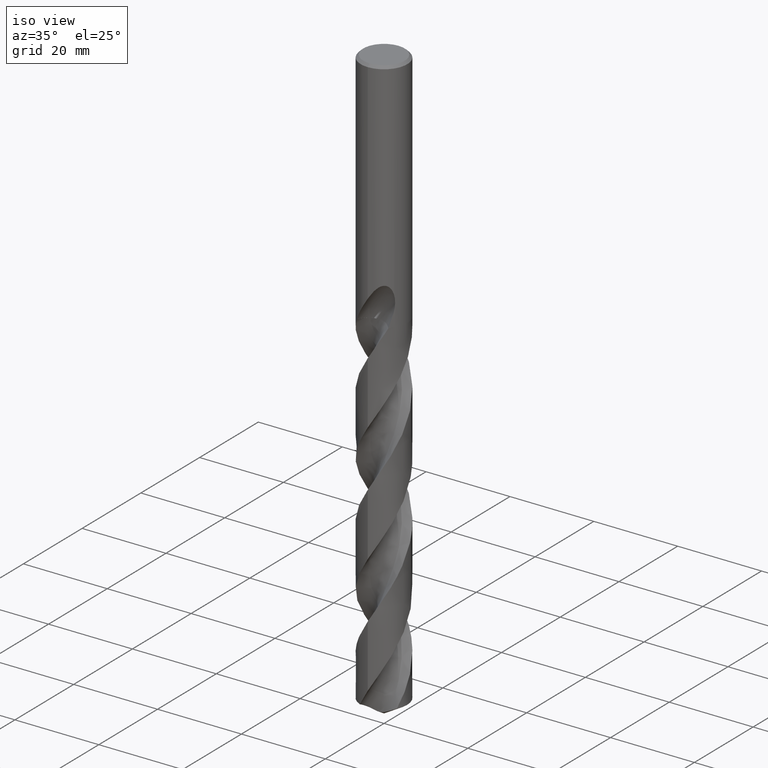
[diagram: clean part render]
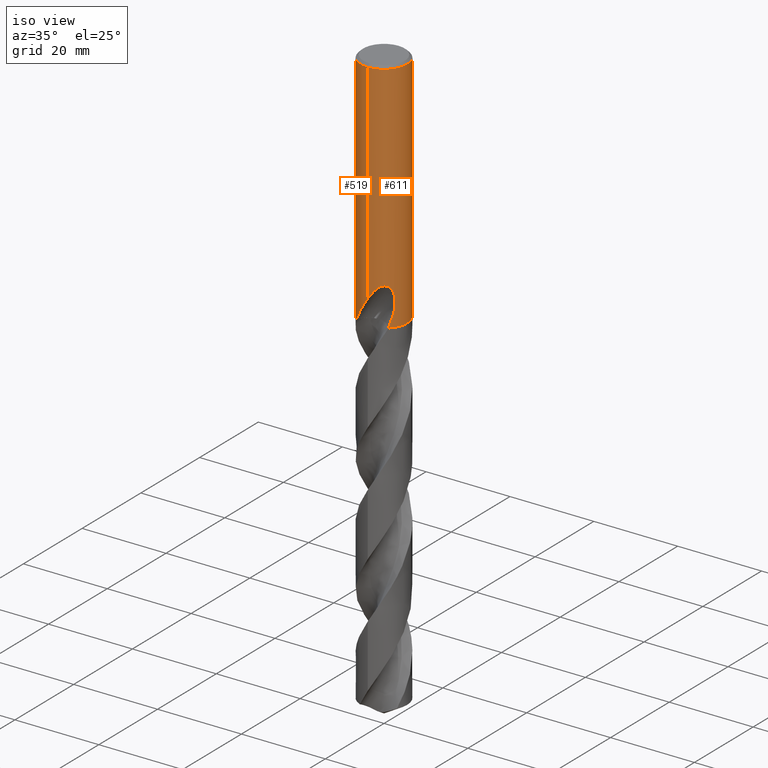
[diagram: same view with one multi-face feature highlighted, each face labeled with its STEP entity id]
A machine part, iso view. The highlighted faces form ONE feature: a constant-radius fillet chain: 2 tangent blend faces with common blend radius 5.55 mm. The faces share edges in the B-rep.
Their STEP definitions:
[1] entity #611 (Cylinder):
#269=VERTEX_POINT('',#753);
#311=VERTEX_POINT('',#798);
#319=VERTEX_POINT('',#806);
#341=EDGE_CURVE('',#269,#347,#833,.T.);
#347=VERTEX_POINT('',#840);
#349=EDGE_CURVE('',#667,#311,#842,.T.);
#351=EDGE_CURVE('',#431,#473,#844,.T.);
#357=EDGE_CURVE('',#409,#637,#851,.T.);
#387=EDGE_CURVE('',#319,#529,#883,.T.);
#401=VERTEX_POINT('',#898);
#409=VERTEX_POINT('',#907);
#431=VERTEX_POINT('',#931);
#455=VERTEX_POINT('',#960);
#457=EDGE_CURVE('',#703,#473,#962,.T.);
#459=EDGE_CURVE('',#401,#537,#964,.T.);
#473=VERTEX_POINT('',#978);
#509=EDGE_CURVE('',#679,#637,#1018,.T.);
#521=EDGE_CURVE('',#529,#401,#1032,.T.);
#529=VERTEX_POINT('',#1040);
#537=VERTEX_POINT('',#1048);
#569=EDGE_CURVE('',#409,#347,#1080,.T.);
#593=EDGE_CURVE('',#311,#319,#1107,.T.);
#609=EDGE_CURVE('',#431,#455,#1124,.T.);
#611=ADVANCED_FACE('',(#1126),#1127,.T.);
#637=VERTEX_POINT('',#1153);
#645=EDGE_CURVE('',#537,#269,#1161,.T.);
#667=VERTEX_POINT('',#1186);
#679=VERTEX_POINT('',#1198);
#687=EDGE_CURVE('',#667,#455,#1207,.T.);
#703=VERTEX_POINT('',#1226);
#721=EDGE_CURVE('',#679,#703,#1246,.T.);
#753=CARTESIAN_POINT('',(0.799431726384364,5.49212244172052,-38.000000276873));
#798=CARTESIAN_POINT('',(0.29010312703583,5.54241284782035,-40.9998328990228));
#806=CARTESIAN_POINT('',(0.873560781758957,5.48082033646175,-39.3198931596091));
#833=B_SPLINE_CURVE_WITH_KNOTS('',3,(#2723,#2724,#2725,#2726,#2727,#2728,#2729,#2730,#2731,#2732,#2733,#2734,#2735,#2736,#2737,#2738,#2739,#2740,#2741,#2742,#2743,#2744,#2745,#2746,#2747,#2748,#2749),.UNSPECIFIED.,.F.,.F.,(4,2,3,2,2,2,2,2,2,2,2,2,4),(-0.542311693646376,-0.271155846823188,0.0,0.271155846823191,0.542311693646383,0.813930389354192,1.085549085062,1.35639351208943,1.62723793911685,1.89831087312512,2.16938380713339,2.44045674114166,2.71152967514993),.UNSPECIFIED.);
#840=CARTESIAN_POINT('',(7.96202783359194E-015,5.55,-39.0232688117743));
#842=B_SPLINE_CURVE_WITH_KNOTS('',3,(#2759,#2760,#2761,#2762,#2763,#2764,#2765,#2766,#2767,#2768,#2769,#2770,#2771,#2772,#2773,#2774),.UNSPECIFIED.,.F.,.F.,(4,2,2,2,2,2,2,4),(5.86589480338266,6.17468154973374,6.4835478273648,6.79241410499587,7.10128038262694,7.41014666025801,7.71864286439063,8.02713906852326),.UNSPECIFIED.);
#844=CIRCLE('',#2777,5.55);
#851=CIRCLE('',#2786,5.55);
#883=LINE('',#2986,#2987);
#898=CARTESIAN_POINT('',(1.33721006514658,5.38649879250619,-40.2901657003257));
#907=CARTESIAN_POINT('',(0.0,5.55,-0.600000000000001));
#931=CARTESIAN_POINT('',(3.53416691770805,4.27927145642549,-56.3916));
#960=CARTESIAN_POINT('',(-1.71141555381548E-012,5.55,-50.497078777137));
#962=B_SPLINE_CURVE_WITH_KNOTS('',3,(#4067,#4068,#4069,#4070),.UNSPECIFIED.,.F.,.F.,(4,4),(0.0,3.18443413913057),.UNSPECIFIED.);
#964=LINE('',#4073,#4074);
#978=CARTESIAN_POINT('',(3.85899923732063,-3.98881246567932,-56.3916));
#1018=LINE('',#4369,#4370);
#1032=B_SPLINE_CURVE_WITH_KNOTS('',3,(#4412,#4413,#4414,#4415,#4416,#4417,#4418,#4419,#4420,#4421),.UNSPECIFIED.,.F.,.F.,(4,2,2,2,4),(8.0271383520842,8.33563452880933,8.64413070553445,8.95286509218947,9.2615994788445),.UNSPECIFIED.);
#1040=CARTESIAN_POINT('',(0.873560781758956,5.48082033646175,-40.7587351791531));
#1048=CARTESIAN_POINT('',(1.33721006514658,5.38649879250619,-38.5150484364821));
#1080=LINE('',#4901,#4902);
#1107=ELLIPSE('',#5395,16.9163698822022,5.55);
#1124=B_SPLINE_CURVE_WITH_KNOTS('',3,(#6185,#6186,#6187,#6188,#6189,#6190,#6191,#6192,#6193,#6194,#6195,#6196,#6197,#6198,#6199,#6200,#6201,#6202,#6203,#6204,#6205,#6206,#6207,#6208,#6209,#6210,#6211,#6212,#6213,#6214),.UNSPECIFIED.,.F.,.F.,(4,2,2,2,2,2,2,2,2,2,2,2,2,2,4),(0.0,2.71554571980446,4.19995213490147,5.54499475809851,7.10792988907432,8.98510180946202,10.6098295872118,11.3469431440182,11.885728142585,12.3956058036005,13.042460287542,13.9888722639679,15.334281634665,16.2143961172333,17.1393257383569),.UNSPECIFIED.);
#1126=FACE_OUTER_BOUND('',#6216,.T.);
#1127=CYLINDRICAL_SURFACE('',#6217,5.55);
#1153=CARTESIAN_POINT('',(6.79656526371419E-016,-5.55,-0.600000000000001));
#1161=B_SPLINE_CURVE_WITH_KNOTS('',3,(#6588,#6589,#6590,#6591,#6592,#6593,#6594,#6595,#6596,#6597),.UNSPECIFIED.,.F.,.F.,(4,2,2,2,4),(0.617468794715614,0.92620319207342,1.23493758943123,1.54343377660373,1.85192996377624),.UNSPECIFIED.);
#1186=CARTESIAN_POINT('',(-6.37761657961682E-016,5.55,-41.0310253601033));
#1198=CARTESIAN_POINT('',(1.71141555381548E-012,-5.55,-50.497078777137));
#1207=LINE('',#7989,#7990);
#1226=CARTESIAN_POINT('',(4.51571400634924,-3.22658131973476,-53.3575297343524));
#1246=B_SPLINE_CURVE_WITH_KNOTS('',3,(#8200,#8201,#8202,#8203,#8204,#8205,#8206,#8207,#8208,#8209,#8210,#8211,#8212,#8213,#8214,#8215,#8216,#8217,#8218,#8219,#8220,#8221,#8222,#8223,#8224,#8225,#8226,#8227,#8228,#8229),.UNSPECIFIED.,.F.,.F.,(4,2,2,2,2,2,2,2,2,2,2,2,2,2,4),(0.0,2.71554571980441,4.19995213490155,5.54499475809945,7.1079298890762,8.98510180946465,10.6098295872151,11.346943144022,11.8857281425889,12.3956058036045,13.042460287546,13.98887226397,15.3342816346614,16.2143961172258,17.1393257383454),.UNSPECIFIED.);
#2723=CARTESIAN_POINT('',(0.665070641317688,5.51000735408377,-37.8135441658217));
#2724=CARTESIAN_POINT('',(0.728723401149102,5.50232431863894,-37.8772528495628));
#2725=CARTESIAN_POINT('',(0.783970654729551,5.49447584902719,-37.9579510961051));
#2726=CARTESIAN_POINT('',(0.857313414247491,5.48351060591628,-38.1349472879311));
#2727=CARTESIAN_POINT('',(0.875400981188567,5.480526719407,-38.2312567303124));
#2728=CARTESIAN_POINT('',(0.875400981188567,5.480526719407,-38.3216420125868));
#2729=CARTESIAN_POINT('',(0.875400981188567,5.480526719407,-38.4120272948612));
#2730=CARTESIAN_POINT('',(0.857313414247487,5.48351060591628,-38.5083367372425));
#2731=CARTESIAN_POINT('',(0.783970654729546,5.49447584902719,-38.6853329290684));
#2732=CARTESIAN_POINT('',(0.728723401149103,5.50232431863894,-38.7660311756108));
#2733=CARTESIAN_POINT('',(0.601309229545935,5.5177035040693,-38.8935572904925));
#2734=CARTESIAN_POINT('',(0.520554582409153,5.52624780331674,-38.9489044411521));
#2735=CARTESIAN_POINT('',(0.343421358057885,5.54007704164846,-39.0223880098749));
#2736=CARTESIAN_POINT('',(0.247029941190699,5.54523882452581,-39.0405166027747));
#2737=CARTESIAN_POINT('',(0.066280827707263,5.55033851190435,-39.0405166027747));
#2738=CARTESIAN_POINT('',(-0.0299913257603066,5.55062540510829,-39.0224803532929));
#2739=CARTESIAN_POINT('',(-0.207059572766399,5.54684308421429,-38.9491517611784));
#2740=CARTESIAN_POINT('',(-0.287859536938754,5.5428984066935,-38.8938623943609));
#2741=CARTESIAN_POINT('',(-0.415497947931173,5.53479486633883,-38.7662957040686));
#2742=CARTESIAN_POINT('',(-0.470845983297244,5.53011422129746,-38.685479252225));
#2743=CARTESIAN_POINT('',(-0.544272853722634,5.52337091899777,-38.5083343871365));
#2744=CARTESIAN_POINT('',(-0.562348199187247,5.52143681507548,-38.4119996572562));
#2745=CARTESIAN_POINT('',(-0.562348199187247,5.52143681507548,-38.2312843679174));
#2746=CARTESIAN_POINT('',(-0.544272853722632,5.52337091899777,-38.1349496380371));
#2747=CARTESIAN_POINT('',(-0.470845983297241,5.53011422129746,-37.9578047729485));
#2748=CARTESIAN_POINT('',(-0.415497947931175,5.53479486633883,-37.876988321105));
#2749=CARTESIAN_POINT('',(-0.351651832180708,5.53884834500133,-37.8131780808256));
#2759=CARTESIAN_POINT('',(-1.37934031714113,5.37586460855452,-40.312226505549));
#2760=CARTESIAN_POINT('',(-1.31968438858505,5.39117113751144,-40.400828308275));
#2761=CARTESIAN_POINT('',(-1.2521017332419,5.40741706824756,-40.4821257464351));
#2762=CARTESIAN_POINT('',(-1.10823459032132,5.43872567652707,-40.6260367544896));
#2763=CARTESIAN_POINT('',(-1.0269287284655,5.45490630063293,-40.6936661106468));
#2764=CARTESIAN_POINT('',(-0.84968018663771,5.48531028679143,-40.8130699413338));
#2765=CARTESIAN_POINT('',(-0.753738654324737,5.49950611016391,-40.8648531299696));
#2766=CARTESIAN_POINT('',(-0.553257796775248,5.52327757984888,-40.948187645085));
#2767=CARTESIAN_POINT('',(-0.448548083074408,5.53285408464065,-40.979804852698));
#2768=CARTESIAN_POINT('',(-0.237578637680728,5.54591977003595,-41.0213527507366));
#2769=CARTESIAN_POINT('',(-0.131316250864781,5.54940139672527,-41.0312723335086));
#2770=CARTESIAN_POINT('',(0.0744685559507916,5.55045303271659,-41.0312723335086));
#2771=CARTESIAN_POINT('',(0.180638592290048,5.54806389332735,-41.0213760821011));
#2772=CARTESIAN_POINT('',(0.391481302692165,5.53718210420313,-40.9798913913271));
#2773=CARTESIAN_POINT('',(0.496156467874978,5.52869705648661,-40.9483136198808));
#2774=CARTESIAN_POINT('',(0.596381416911201,5.51786455121571,-40.9066834666883));
#2777=AXIS2_PLACEMENT_3D('',#8341,#8342,#8343);
#2786=AXIS2_PLACEMENT_3D('',#8367,#8368,#8369);
#2986=CARTESIAN_POINT('',(0.873560781758957,5.48082033646175,-40.0393141693811));
#2987=VECTOR('',#8408,1.0);
#4067=CARTESIAN_POINT('',(4.51571400640186,-3.22658131966112,-53.3575297343814));
#4068=CARTESIAN_POINT('',(4.33708171643804,-3.47658349033939,-54.3735637213023));
#4069=CARTESIAN_POINT('',(4.12184654319882,-3.73451934920839,-55.3956099516546));
#4070=CARTESIAN_POINT('',(3.85899923732063,-3.98881246567932,-56.3916));
#4073=CARTESIAN_POINT('',(1.33721006514658,5.38649879250619,-39.4026070684039));
#4074=VECTOR('',#8499,1.0);
#4369=CARTESIAN_POINT('',(6.79656526371419E-016,-5.55,-52.1958));
#4370=VECTOR('',#8551,1.0);
#4412=CARTESIAN_POINT('',(0.596381143973778,5.51786458071531,-40.906683032173));
#4413=CARTESIAN_POINT('',(0.696606084607852,5.507032081368,-40.8650528826083));
#4414=CARTESIAN_POINT('',(0.792551986179631,5.49385300504264,-40.8133039204953));
#4415=CARTESIAN_POINT('',(0.969823780372124,5.46534549017001,-40.6939591844098));
#4416=CARTESIAN_POINT('',(1.05114834666616,5.45004462756288,-40.6263548551124));
#4417=CARTESIAN_POINT('',(1.19512314755429,5.42029411497279,-40.4824223702611));
#4418=CARTESIAN_POINT('',(1.26277651473597,5.40478261632184,-40.4010724062005));
#4419=CARTESIAN_POINT('',(1.38219254861866,5.37548355172322,-40.223769240639));
#4420=CARTESIAN_POINT('',(1.43396471477614,5.36172659166716,-40.127817381024));
#4421=CARTESIAN_POINT('',(1.47561736433644,5.35023862963782,-40.0275815690504));
#4901=CARTESIAN_POINT('',(-6.79656526371419E-016,5.55,-52.1958));
#4902=VECTOR('',#8587,1.0);
#5395=AXIS2_PLACEMENT_3D('',#8633,#8634,#8635);
#6185=CARTESIAN_POINT('',(3.53416691770805,4.27927145642549,-56.3916));
#6186=CARTESIAN_POINT('',(3.16825299423757,4.58147263628202,-55.620797994591));
#6187=CARTESIAN_POINT('',(2.74773233112286,4.85000705771806,-54.9019787866435));
#6188=CARTESIAN_POINT('',(2.01447189540071,5.17929640951057,-53.700924585549));
#6189=CARTESIAN_POINT('',(1.75042969909802,5.27408337292277,-53.2780387698275));
#6190=CARTESIAN_POINT('',(1.23919719962164,5.41576292009447,-52.459306827744));
#6191=CARTESIAN_POINT('',(0.994278278619489,5.46581809216823,-52.0672591118119));
#6192=CARTESIAN_POINT('',(0.464077820893535,5.53803600734072,-51.2222212346555));
#6193=CARTESIAN_POINT('',(0.174354453735316,5.55495965576598,-50.7625985820317));
#6194=CARTESIAN_POINT('',(-0.469007913307961,5.54128450955062,-49.7794475626532));
#6195=CARTESIAN_POINT('',(-0.850484224670217,5.49933684497017,-49.220025199228));
#6196=CARTESIAN_POINT('',(-1.58566385422093,5.33016637491701,-48.2983730039671));
#6197=CARTESIAN_POINT('',(-1.99201894394977,5.20147414289074,-47.8491133217153));
#6198=CARTESIAN_POINT('',(-2.6072632943519,4.90409633036194,-47.4281198041953));
#6199=CARTESIAN_POINT('',(-2.81106902607706,4.79174491453877,-47.3240031425544));
#6200=CARTESIAN_POINT('',(-3.16819211441747,4.56041049789696,-47.2440413785207));
#6201=CARTESIAN_POINT('',(-3.31467231429698,4.45505643237463,-47.2425661065378));
#6202=CARTESIAN_POINT('',(-3.58750283605625,4.23804833747488,-47.3126223027479));
#6203=CARTESIAN_POINT('',(-3.70682659823599,4.13323651246762,-47.3782928132781));
#6204=CARTESIAN_POINT('',(-3.94965430540244,3.9035456061515,-47.5837561995636));
#6205=CARTESIAN_POINT('',(-4.06199790161699,3.78451274910554,-47.7354524243094));
#6206=CARTESIAN_POINT('',(-4.29211418350843,3.52459603700091,-48.1508404124883));
#6207=CARTESIAN_POINT('',(-4.40210269005151,3.38305463627348,-48.4589368298414));
#6208=CARTESIAN_POINT('',(-4.6089178539165,3.09886275872721,-49.3209345397371));
#6209=CARTESIAN_POINT('',(-4.68367663937856,2.97782629983709,-49.9348312303497));
#6210=CARTESIAN_POINT('',(-4.7206341711601,2.91871087349003,-51.0708415278319));
#6211=CARTESIAN_POINT('',(-4.71191942299903,2.9331605816343,-51.5231543606201));
#6212=CARTESIAN_POINT('',(-4.65044671987064,3.02973370545345,-52.4411187631876));
#6213=CARTESIAN_POINT('',(-4.59557213353759,3.11481706285408,-52.9033155071982));
#6214=CARTESIAN_POINT('',(-4.51571400634924,3.22658131973476,-53.3575297343524));
#6216=EDGE_LOOP('',(#8645,#8646,#8647,#8648,#8649,#8650,#8651,#8652,#8653,#8654,#8655,#8656,#8657,#8658,#8659));
#6217=AXIS2_PLACEMENT_3D('',#8660,#8661,#8662);
#6588=CARTESIAN_POINT('',(1.47561737235754,5.35023862742557,-38.7776325817428));
#6589=CARTESIAN_POINT('',(1.43396472134645,5.36172658992223,-38.6773967663089));
#6590=CARTESIAN_POINT('',(1.38219255338663,5.37548355052183,-38.5814449033837));
#6591=CARTESIAN_POINT('',(1.26277651534253,5.40478261620457,-38.4041417317049));
#6592=CARTESIAN_POINT('',(1.19512314580133,5.42029411539403,-38.3227917648372));
#6593=CARTESIAN_POINT('',(1.05114833993583,5.45004462889464,-38.1788592750752));
#6594=CARTESIAN_POINT('',(0.969823770861304,5.46534549190758,-38.1112549434921));
#6595=CARTESIAN_POINT('',(0.792551970607634,5.49385300733869,-37.9919102033694));
#6596=CARTESIAN_POINT('',(0.696606065755094,5.50703208381498,-37.9401612395047));
#6597=CARTESIAN_POINT('',(0.596381121697896,5.51786458312293,-37.8985310885327));
#7989=CARTESIAN_POINT('',(-6.79656526371419E-016,5.55,-52.1958));
#7990=VECTOR('',#8732,1.0);
#8200=CARTESIAN_POINT('',(-3.53416691770805,-4.27927145642549,-56.3916));
#8201=CARTESIAN_POINT('',(-3.16825299423758,-4.58147263628201,-55.6207979945911));
#8202=CARTESIAN_POINT('',(-2.74773233112289,-4.85000705771806,-54.9019787866435));
#8203=CARTESIAN_POINT('',(-2.01447189540067,-5.1792964095106,-53.7009245855489));
#8204=CARTESIAN_POINT('',(-1.75042969909792,-5.27408337292279,-53.2780387698273));
#8205=CARTESIAN_POINT('',(-1.2391971996216,-5.41576292009448,-52.4593068277439));
#8206=CARTESIAN_POINT('',(-0.994278278619389,-5.46581809216824,-52.0672591118117));
#8207=CARTESIAN_POINT('',(-0.464077820893648,-5.5380360073407,-51.2222212346556));
#8208=CARTESIAN_POINT('',(-0.174354453735356,-5.55495965576598,-50.7625985820317));
#8209=CARTESIAN_POINT('',(0.469007913307958,-5.54128450955063,-49.7794475626532));
#8210=CARTESIAN_POINT('',(0.85048422467022,-5.49933684497017,-49.2200251992279));
#8211=CARTESIAN_POINT('',(1.58566385422096,-5.330166374917,-48.2983730039671));
#8212=CARTESIAN_POINT('',(1.99201894394978,-5.20147414289073,-47.8491133217153));
#8213=CARTESIAN_POINT('',(2.60726329435192,-4.90409633036193,-47.4281198041953));
#8214=CARTESIAN_POINT('',(2.81106902607706,-4.79174491453876,-47.3240031425545));
#8215=CARTESIAN_POINT('',(3.16819211441742,-4.56041049789698,-47.2440413785207));
#8216=CARTESIAN_POINT('',(3.31467231429696,-4.45505643237465,-47.2425661065378));
#8217=CARTESIAN_POINT('',(3.58750283605623,-4.23804833747489,-47.3126223027479));
#8218=CARTESIAN_POINT('',(3.70682659823596,-4.13323651246765,-47.3782928132781));
#8219=CARTESIAN_POINT('',(3.94965430540244,-3.90354560615151,-47.5837561995636));
#8220=CARTESIAN_POINT('',(4.06199790161698,-3.78451274910554,-47.7354524243094));
#8221=CARTESIAN_POINT('',(4.29211418350816,-3.52459603700122,-48.1508404124878));
#8222=CARTESIAN_POINT('',(4.40210269005134,-3.38305463627373,-48.4589368298407));
#8223=CARTESIAN_POINT('',(4.60891785391647,-3.09886275872725,-49.320934539737));
#8224=CARTESIAN_POINT('',(4.68367663937855,-2.9778262998371,-49.9348312303496));
#8225=CARTESIAN_POINT('',(4.7206341711601,-2.91871087349003,-51.070841527832));
#8226=CARTESIAN_POINT('',(4.71191942299903,-2.9331605816343,-51.5231543606202));
#8227=CARTESIAN_POINT('',(4.65044671987063,-3.02973370545345,-52.4411187631876));
#8228=CARTESIAN_POINT('',(4.59557213353759,-3.11481706285408,-52.9033155071982));
#8229=CARTESIAN_POINT('',(4.51571400634924,-3.22658131973476,-53.3575297343524));
#8341=CARTESIAN_POINT('',(0.0,0.0,-56.3916));
#8342=DIRECTION('',(0.0,0.0,-1.0));
#8343=DIRECTION('',(0.0,1.0,0.0));
#8367=CARTESIAN_POINT('',(0.0,0.0,-0.600000000000001));
#8368=DIRECTION('',(0.0,0.0,-1.0));
#8369=DIRECTION('',(0.0,1.0,0.0));
#8408=DIRECTION('',(0.0,0.0,-1.0));
#8499=DIRECTION('',(-0.0,-0.0,1.0));
#8551=DIRECTION('',(-0.0,-0.0,1.0));
#8587=DIRECTION('',(0.0,0.0,-1.0));
#8633=CARTESIAN_POINT('',(0.0,0.0,-41.8351219173269));
#8634=DIRECTION('',(0.944648353914092,0.0,-0.328084573619969));
#8635=DIRECTION('',(0.328084573619969,-0.0,0.944648353914092));
#8645=ORIENTED_EDGE('',*,*,#569,.F.);
#8646=ORIENTED_EDGE('',*,*,#357,.T.);
#8647=ORIENTED_EDGE('',*,*,#509,.F.);
#8648=ORIENTED_EDGE('',*,*,#721,.T.);
#8649=ORIENTED_EDGE('',*,*,#457,.T.);
#8650=ORIENTED_EDGE('',*,*,#351,.F.);
#8651=ORIENTED_EDGE('',*,*,#609,.T.);
#8652=ORIENTED_EDGE('',*,*,#687,.F.);
#8653=ORIENTED_EDGE('',*,*,#349,.T.);
#8654=ORIENTED_EDGE('',*,*,#593,.T.);
#8655=ORIENTED_EDGE('',*,*,#387,.T.);
#8656=ORIENTED_EDGE('',*,*,#521,.T.);
#8657=ORIENTED_EDGE('',*,*,#459,.T.);
#8658=ORIENTED_EDGE('',*,*,#645,.T.);
#8659=ORIENTED_EDGE('',*,*,#341,.T.);
#8660=CARTESIAN_POINT('',(0.0,0.0,-52.1958));
#8661=DIRECTION('',(-0.0,-0.0,1.0));
#8662=DIRECTION('',(0.0,1.0,0.0));
#8732=DIRECTION('',(0.0,0.0,-1.0));
[2] entity #519 (Cylinder):
#281=EDGE_CURVE('',#353,#667,#767,.T.);
#285=VERTEX_POINT('',#771);
#291=VERTEX_POINT('',#777);
#297=EDGE_CURVE('',#501,#491,#783,.T.);
#329=VERTEX_POINT('',#819);
#347=VERTEX_POINT('',#840);
#353=VERTEX_POINT('',#846);
#409=VERTEX_POINT('',#907);
#419=EDGE_CURVE('',#285,#481,#918,.T.);
#455=VERTEX_POINT('',#960);
#469=EDGE_CURVE('',#291,#353,#974,.T.);
#477=EDGE_CURVE('',#329,#285,#982,.T.);
#481=VERTEX_POINT('',#986);
#491=VERTEX_POINT('',#998);
#493=VERTEX_POINT('',#1000);
#499=EDGE_CURVE('',#637,#409,#1006,.T.);
#501=VERTEX_POINT('',#1008);
#505=EDGE_CURVE('',#633,#329,#1013,.T.);
#509=EDGE_CURVE('',#679,#637,#1018,.T.);
#511=EDGE_CURVE('',#347,#633,#1020,.T.);
#519=ADVANCED_FACE('',(#1029),#1030,.T.);
#541=EDGE_CURVE('',#455,#493,#1052,.T.);
#561=EDGE_CURVE('',#501,#679,#1072,.T.);
#569=EDGE_CURVE('',#409,#347,#1080,.T.);
#591=EDGE_CURVE('',#481,#291,#1105,.T.);
#633=VERTEX_POINT('',#1149);
#635=EDGE_CURVE('',#493,#491,#1151,.T.);
#637=VERTEX_POINT('',#1153);
#667=VERTEX_POINT('',#1186);
#679=VERTEX_POINT('',#1198);
#687=EDGE_CURVE('',#667,#455,#1207,.T.);
#767=B_SPLINE_CURVE_WITH_KNOTS('',3,(#1292,#1293,#1294,#1295,#1296,#1297,#1298,#1299,#1300,#1301,#1302,#1303,#1304,#1305,#1306,#1307),.UNSPECIFIED.,.F.,.F.,(4,2,2,2,2,2,2,4),(5.86589480338266,6.17468154973374,6.4835478273648,6.79241410499587,7.10128038262694,7.41014666025801,7.71864286439063,8.02713906852326),.UNSPECIFIED.);
#771=CARTESIAN_POINT('',(-1.0350734039088,5.45262533542519,-38.3171221986971));
#777=CARTESIAN_POINT('',(-6.7965652637142E-016,5.55,-39.7128911336578));
#783=CIRCLE('',#1362,5.55);
#819=CARTESIAN_POINT('',(-0.562333990228013,5.52143826221341,-38.3171221986971));
#840=CARTESIAN_POINT('',(7.96202783359194E-015,5.55,-39.0232688117743));
#846=CARTESIAN_POINT('',(-1.337052752443,5.38653784328901,-40.3720803908795));
#907=CARTESIAN_POINT('',(0.0,5.55,-0.600000000000001));
#918=B_SPLINE_CURVE_WITH_KNOTS('',3,(#3299,#3300,#3301,#3302,#3303,#3304,#3305,#3306,#3307,#3308,#3309,#3310,#3311,#3312),.UNSPECIFIED.,.F.,.F.,(4,2,2,2,2,2,4),(3.13066202708676,3.57767803673171,4.02469404637666,4.47171005602161,4.91798978338185,5.36426951074209,5.81255461064942),.UNSPECIFIED.);
#960=CARTESIAN_POINT('',(-1.71141555381548E-012,5.55,-50.497078777137));
#974=ELLIPSE('',#4092,6.18785279783788,5.55);
#982=CIRCLE('',#4102,5.55);
#986=CARTESIAN_POINT('',(-2.65184064516339E-016,5.55,-39.5000801551882));
#998=CARTESIAN_POINT('',(-3.85899923732064,3.98881246567932,-56.3916));
#1000=CARTESIAN_POINT('',(-4.51571400634924,3.22658131973475,-53.3575297343524));
#1006=CIRCLE('',#4327,5.55);
#1008=CARTESIAN_POINT('',(-3.53416691770805,-4.27927145642549,-56.3916));
#1013=B_SPLINE_CURVE_WITH_KNOTS('',3,(#4336,#4337,#4338,#4339,#4340,#4341,#4342,#4343,#4344,#4345,#4346,#4347,#4348,#4349,#4350,#4351,#4352,#4353,#4354,#4355,#4356,#4357,#4358,#4359,#4360,#4361,#4362),.UNSPECIFIED.,.F.,.F.,(4,2,3,2,2,2,2,2,2,2,2,2,4),(-0.542311693646376,-0.271155846823188,0.0,0.271155846823191,0.542311693646383,0.813930389354192,1.085549085062,1.35639351208943,1.62723793911685,1.89831087312512,2.16938380713339,2.44045674114166,2.71152967514993),.UNSPECIFIED.);
#1018=LINE('',#4369,#4370);
#1020=B_SPLINE_CURVE_WITH_KNOTS('',3,(#4373,#4374,#4375,#4376,#4377,#4378,#4379,#4380,#4381,#4382,#4383,#4384,#4385,#4386,#4387,#4388,#4389,#4390,#4391,#4392,#4393,#4394,#4395,#4396,#4397,#4398,#4399),.UNSPECIFIED.,.F.,.F.,(4,2,3,2,2,2,2,2,2,2,2,2,4),(-0.542311693646376,-0.271155846823188,0.0,0.271155846823191,0.542311693646383,0.813930389354192,1.085549085062,1.35639351208943,1.62723793911685,1.89831087312512,2.16938380713339,2.44045674114166,2.71152967514993),.UNSPECIFIED.);
#1029=FACE_OUTER_BOUND('',#4408,.T.);
#1030=CYLINDRICAL_SURFACE('',#4409,5.55);
#1052=B_SPLINE_CURVE_WITH_KNOTS('',3,(#4620,#4621,#4622,#4623,#4624,#4625,#4626,#4627,#4628,#4629,#4630,#4631,#4632,#4633,#4634,#4635,#4636,#4637,#4638,#4639,#4640,#4641,#4642,#4643,#4644,#4645,#4646,#4647,#4648,#4649),.UNSPECIFIED.,.F.,.F.,(4,2,2,2,2,2,2,2,2,2,2,2,2,2,4),(0.0,2.71554571980446,4.19995213490147,5.54499475809851,7.10792988907432,8.98510180946202,10.6098295872118,11.3469431440182,11.885728142585,12.3956058036005,13.042460287542,13.9888722639679,15.334281634665,16.2143961172333,17.1393257383569),.UNSPECIFIED.);
#1072=B_SPLINE_CURVE_WITH_KNOTS('',3,(#4861,#4862,#4863,#4864,#4865,#4866,#4867,#4868,#4869,#4870,#4871,#4872,#4873,#4874,#4875,#4876,#4877,#4878,#4879,#4880,#4881,#4882,#4883,#4884,#4885,#4886,#4887,#4888,#4889,#4890),.UNSPECIFIED.,.F.,.F.,(4,2,2,2,2,2,2,2,2,2,2,2,2,2,4),(0.0,2.71554571980441,4.19995213490155,5.54499475809945,7.1079298890762,8.98510180946465,10.6098295872151,11.346943144022,11.8857281425889,12.3956058036045,13.042460287546,13.98887226397,15.3342816346614,16.2143961172258,17.1393257383454),.UNSPECIFIED.);
#1080=LINE('',#4901,#4902);
#1105=LINE('',#5391,#5392);
#1149=CARTESIAN_POINT('',(-0.486378944383043,5.52864680753445,-38.6432837483006));
#1151=B_SPLINE_CURVE_WITH_KNOTS('',3,(#6560,#6561,#6562,#6563),.UNSPECIFIED.,.F.,.F.,(4,4),(0.0,3.18443413913048),.UNSPECIFIED.);
#1153=CARTESIAN_POINT('',(6.79656526371419E-016,-5.55,-0.600000000000001));
#1186=CARTESIAN_POINT('',(-6.37761657961682E-016,5.55,-41.0310253601033));
#1198=CARTESIAN_POINT('',(1.71141555381548E-012,-5.55,-50.497078777137));
#1207=LINE('',#7989,#7990);
#1292=CARTESIAN_POINT('',(-1.37934031714113,5.37586460855452,-40.312226505549));
#1293=CARTESIAN_POINT('',(-1.31968438858505,5.39117113751144,-40.400828308275));
#1294=CARTESIAN_POINT('',(-1.2521017332419,5.40741706824756,-40.4821257464351));
#1295=CARTESIAN_POINT('',(-1.10823459032132,5.43872567652707,-40.6260367544896));
#1296=CARTESIAN_POINT('',(-1.0269287284655,5.45490630063293,-40.6936661106468));
#1297=CARTESIAN_POINT('',(-0.84968018663771,5.48531028679143,-40.8130699413338));
#1298=CARTESIAN_POINT('',(-0.753738654324737,5.49950611016391,-40.8648531299696));
#1299=CARTESIAN_POINT('',(-0.553257796775248,5.52327757984888,-40.948187645085));
#1300=CARTESIAN_POINT('',(-0.448548083074408,5.53285408464065,-40.979804852698));
#1301=CARTESIAN_POINT('',(-0.237578637680728,5.54591977003595,-41.0213527507366));
#1302=CARTESIAN_POINT('',(-0.131316250864781,5.54940139672527,-41.0312723335086));
#1303=CARTESIAN_POINT('',(0.0744685559507916,5.55045303271659,-41.0312723335086));
#1304=CARTESIAN_POINT('',(0.180638592290048,5.54806389332735,-41.0213760821011));
#1305=CARTESIAN_POINT('',(0.391481302692165,5.53718210420313,-40.9798913913271));
#1306=CARTESIAN_POINT('',(0.496156467874978,5.52869705648661,-40.9483136198808));
#1307=CARTESIAN_POINT('',(0.596381416911201,5.51786455121571,-40.9066834666883));
#1362=AXIS2_PLACEMENT_3D('',#8271,#8272,#8273);
#3299=CARTESIAN_POINT('',(-0.944761311089633,5.46899680609417,-37.8728572322416));
#3300=CARTESIAN_POINT('',(-1.00524555413457,5.45854824328665,-38.0186132964988));
#3301=CARTESIAN_POINT('',(-1.03510901790186,5.45261857469035,-38.1772965241845));
#3302=CARTESIAN_POINT('',(-1.03510901790186,5.45261857469035,-38.4753071972811));
#3303=CARTESIAN_POINT('',(-1.00524555413457,5.45854824328665,-38.6339904249668));
#3304=CARTESIAN_POINT('',(-0.884277068044703,5.4794453689017,-38.9255025534812));
#3305=CARTESIAN_POINT('',(-0.793190719347476,5.4940464764872,-39.0583653487587));
#3306=CARTESIAN_POINT('',(-0.583353896694374,5.5202680709745,-39.2679961608293));
#3307=CARTESIAN_POINT('',(-0.450553153015266,5.53360447314453,-39.3589130706856));
#3308=CARTESIAN_POINT('',(-0.159263670852145,5.54963167165218,-39.4796085072509));
#3309=CARTESIAN_POINT('',(-0.000749286053669251,5.55199324109205,-39.5093686300866));
#3310=CARTESIAN_POINT('',(0.297333008892911,5.54404382365238,-39.5093686300866));
#3311=CARTESIAN_POINT('',(0.456157149522271,5.53316457940821,-39.4793686919282));
#3312=CARTESIAN_POINT('',(0.601885905787598,5.51726683752148,-39.4188201495732));
#4092=AXIS2_PLACEMENT_3D('',#8504,#8505,#8506);
#4102=AXIS2_PLACEMENT_3D('',#8510,#8511,#8512);
#4327=AXIS2_PLACEMENT_3D('',#8531,#8532,#8533);
#4336=CARTESIAN_POINT('',(0.665070641317688,5.51000735408377,-37.8135441658217));
#4337=CARTESIAN_POINT('',(0.728723401149102,5.50232431863894,-37.8772528495628));
#4338=CARTESIAN_POINT('',(0.783970654729551,5.49447584902719,-37.9579510961051));
#4339=CARTESIAN_POINT('',(0.857313414247491,5.48351060591628,-38.1349472879311));
#4340=CARTESIAN_POINT('',(0.875400981188567,5.480526719407,-38.2312567303124));
#4341=CARTESIAN_POINT('',(0.875400981188567,5.480526719407,-38.3216420125868));
#4342=CARTESIAN_POINT('',(0.875400981188567,5.480526719407,-38.4120272948612));
#4343=CARTESIAN_POINT('',(0.857313414247487,5.48351060591628,-38.5083367372425));
#4344=CARTESIAN_POINT('',(0.783970654729546,5.49447584902719,-38.6853329290684));
#4345=CARTESIAN_POINT('',(0.728723401149103,5.50232431863894,-38.7660311756108));
#4346=CARTESIAN_POINT('',(0.601309229545935,5.5177035040693,-38.8935572904925));
#4347=CARTESIAN_POINT('',(0.520554582409153,5.52624780331674,-38.9489044411521));
#4348=CARTESIAN_POINT('',(0.343421358057885,5.54007704164846,-39.0223880098749));
#4349=CARTESIAN_POINT('',(0.247029941190699,5.54523882452581,-39.0405166027747));
#4350=CARTESIAN_POINT('',(0.066280827707263,5.55033851190435,-39.0405166027747));
#4351=CARTESIAN_POINT('',(-0.0299913257603066,5.55062540510829,-39.0224803532929));
#4352=CARTESIAN_POINT('',(-0.207059572766399,5.54684308421429,-38.9491517611784));
#4353=CARTESIAN_POINT('',(-0.287859536938754,5.5428984066935,-38.8938623943609));
#4354=CARTESIAN_POINT('',(-0.415497947931173,5.53479486633883,-38.7662957040686));
#4355=CARTESIAN_POINT('',(-0.470845983297244,5.53011422129746,-38.685479252225));
#4356=CARTESIAN_POINT('',(-0.544272853722634,5.52337091899777,-38.5083343871365));
#4357=CARTESIAN_POINT('',(-0.562348199187247,5.52143681507548,-38.4119996572562));
#4358=CARTESIAN_POINT('',(-0.562348199187247,5.52143681507548,-38.2312843679174));
#4359=CARTESIAN_POINT('',(-0.544272853722632,5.52337091899777,-38.1349496380371));
#4360=CARTESIAN_POINT('',(-0.470845983297241,5.53011422129746,-37.9578047729485));
#4361=CARTESIAN_POINT('',(-0.415497947931175,5.53479486633883,-37.876988321105));
#4362=CARTESIAN_POINT('',(-0.351651832180708,5.53884834500133,-37.8131780808256));
#4369=CARTESIAN_POINT('',(6.79656526371419E-016,-5.55,-52.1958));
#4370=VECTOR('',#8551,1.0);
#4373=CARTESIAN_POINT('',(0.665070641317688,5.51000735408377,-37.8135441658217));
#4374=CARTESIAN_POINT('',(0.728723401149102,5.50232431863894,-37.8772528495628));
#4375=CARTESIAN_POINT('',(0.783970654729551,5.49447584902719,-37.9579510961051));
#4376=CARTESIAN_POINT('',(0.857313414247491,5.48351060591628,-38.1349472879311));
#4377=CARTESIAN_POINT('',(0.875400981188567,5.480526719407,-38.2312567303124));
#4378=CARTESIAN_POINT('',(0.875400981188567,5.480526719407,-38.3216420125868));
#4379=CARTESIAN_POINT('',(0.875400981188567,5.480526719407,-38.4120272948612));
#4380=CARTESIAN_POINT('',(0.857313414247487,5.48351060591628,-38.5083367372425));
#4381=CARTESIAN_POINT('',(0.783970654729546,5.49447584902719,-38.6853329290684));
#4382=CARTESIAN_POINT('',(0.728723401149103,5.50232431863894,-38.7660311756108));
#4383=CARTESIAN_POINT('',(0.601309229545935,5.5177035040693,-38.8935572904925));
#4384=CARTESIAN_POINT('',(0.520554582409153,5.52624780331674,-38.9489044411521));
#4385=CARTESIAN_POINT('',(0.343421358057885,5.54007704164846,-39.0223880098749));
#4386=CARTESIAN_POINT('',(0.247029941190699,5.54523882452581,-39.0405166027747));
#4387=CARTESIAN_POINT('',(0.066280827707263,5.55033851190435,-39.0405166027747));
#4388=CARTESIAN_POINT('',(-0.0299913257603066,5.55062540510829,-39.0224803532929));
#4389=CARTESIAN_POINT('',(-0.207059572766399,5.54684308421429,-38.9491517611784));
#4390=CARTESIAN_POINT('',(-0.287859536938754,5.5428984066935,-38.8938623943609));
#4391=CARTESIAN_POINT('',(-0.415497947931173,5.53479486633883,-38.7662957040686));
#4392=CARTESIAN_POINT('',(-0.470845983297244,5.53011422129746,-38.685479252225));
#4393=CARTESIAN_POINT('',(-0.544272853722634,5.52337091899777,-38.5083343871365));
#4394=CARTESIAN_POINT('',(-0.562348199187247,5.52143681507548,-38.4119996572562));
#4395=CARTESIAN_POINT('',(-0.562348199187247,5.52143681507548,-38.2312843679174));
#4396=CARTESIAN_POINT('',(-0.544272853722632,5.52337091899777,-38.1349496380371));
#4397=CARTESIAN_POINT('',(-0.470845983297241,5.53011422129746,-37.9578047729485));
#4398=CARTESIAN_POINT('',(-0.415497947931175,5.53479486633883,-37.876988321105));
#4399=CARTESIAN_POINT('',(-0.351651832180708,5.53884834500133,-37.8131780808256));
#4408=EDGE_LOOP('',(#8561,#8562,#8563,#8564,#8565,#8566,#8567,#8568,#8569,#8570,#8571,#8572,#8573,#8574,#8575));
#4409=AXIS2_PLACEMENT_3D('',#8576,#8577,#8578);
#4620=CARTESIAN_POINT('',(3.53416691770805,4.27927145642549,-56.3916));
#4621=CARTESIAN_POINT('',(3.16825299423757,4.58147263628202,-55.620797994591));
#4622=CARTESIAN_POINT('',(2.74773233112286,4.85000705771806,-54.9019787866435));
#4623=CARTESIAN_POINT('',(2.01447189540071,5.17929640951057,-53.700924585549));
#4624=CARTESIAN_POINT('',(1.75042969909802,5.27408337292277,-53.2780387698275));
#4625=CARTESIAN_POINT('',(1.23919719962164,5.41576292009447,-52.459306827744));
#4626=CARTESIAN_POINT('',(0.994278278619489,5.46581809216823,-52.0672591118119));
#4627=CARTESIAN_POINT('',(0.464077820893535,5.53803600734072,-51.2222212346555));
#4628=CARTESIAN_POINT('',(0.174354453735316,5.55495965576598,-50.7625985820317));
#4629=CARTESIAN_POINT('',(-0.469007913307961,5.54128450955062,-49.7794475626532));
#4630=CARTESIAN_POINT('',(-0.850484224670217,5.49933684497017,-49.220025199228));
#4631=CARTESIAN_POINT('',(-1.58566385422093,5.33016637491701,-48.2983730039671));
#4632=CARTESIAN_POINT('',(-1.99201894394977,5.20147414289074,-47.8491133217153));
#4633=CARTESIAN_POINT('',(-2.6072632943519,4.90409633036194,-47.4281198041953));
#4634=CARTESIAN_POINT('',(-2.81106902607706,4.79174491453877,-47.3240031425544));
#4635=CARTESIAN_POINT('',(-3.16819211441747,4.56041049789696,-47.2440413785207));
#4636=CARTESIAN_POINT('',(-3.31467231429698,4.45505643237463,-47.2425661065378));
#4637=CARTESIAN_POINT('',(-3.58750283605625,4.23804833747488,-47.3126223027479));
#4638=CARTESIAN_POINT('',(-3.70682659823599,4.13323651246762,-47.3782928132781));
#4639=CARTESIAN_POINT('',(-3.94965430540244,3.9035456061515,-47.5837561995636));
#4640=CARTESIAN_POINT('',(-4.06199790161699,3.78451274910554,-47.7354524243094));
#4641=CARTESIAN_POINT('',(-4.29211418350843,3.52459603700091,-48.1508404124883));
#4642=CARTESIAN_POINT('',(-4.40210269005151,3.38305463627348,-48.4589368298414));
#4643=CARTESIAN_POINT('',(-4.6089178539165,3.09886275872721,-49.3209345397371));
#4644=CARTESIAN_POINT('',(-4.68367663937856,2.97782629983709,-49.9348312303497));
#4645=CARTESIAN_POINT('',(-4.7206341711601,2.91871087349003,-51.0708415278319));
#4646=CARTESIAN_POINT('',(-4.71191942299903,2.9331605816343,-51.5231543606201));
#4647=CARTESIAN_POINT('',(-4.65044671987064,3.02973370545345,-52.4411187631876));
#4648=CARTESIAN_POINT('',(-4.59557213353759,3.11481706285408,-52.9033155071982));
#4649=CARTESIAN_POINT('',(-4.51571400634924,3.22658131973476,-53.3575297343524));
#4861=CARTESIAN_POINT('',(-3.53416691770805,-4.27927145642549,-56.3916));
#4862=CARTESIAN_POINT('',(-3.16825299423758,-4.58147263628201,-55.6207979945911));
#4863=CARTESIAN_POINT('',(-2.74773233112289,-4.85000705771806,-54.9019787866435));
#4864=CARTESIAN_POINT('',(-2.01447189540067,-5.1792964095106,-53.7009245855489));
#4865=CARTESIAN_POINT('',(-1.75042969909792,-5.27408337292279,-53.2780387698273));
#4866=CARTESIAN_POINT('',(-1.2391971996216,-5.41576292009448,-52.4593068277439));
#4867=CARTESIAN_POINT('',(-0.994278278619389,-5.46581809216824,-52.0672591118117));
#4868=CARTESIAN_POINT('',(-0.464077820893648,-5.5380360073407,-51.2222212346556));
#4869=CARTESIAN_POINT('',(-0.174354453735356,-5.55495965576598,-50.7625985820317));
#4870=CARTESIAN_POINT('',(0.469007913307958,-5.54128450955063,-49.7794475626532));
#4871=CARTESIAN_POINT('',(0.85048422467022,-5.49933684497017,-49.2200251992279));
#4872=CARTESIAN_POINT('',(1.58566385422096,-5.330166374917,-48.2983730039671));
#4873=CARTESIAN_POINT('',(1.99201894394978,-5.20147414289073,-47.8491133217153));
#4874=CARTESIAN_POINT('',(2.60726329435192,-4.90409633036193,-47.4281198041953));
#4875=CARTESIAN_POINT('',(2.81106902607706,-4.79174491453876,-47.3240031425545));
#4876=CARTESIAN_POINT('',(3.16819211441742,-4.56041049789698,-47.2440413785207));
#4877=CARTESIAN_POINT('',(3.31467231429696,-4.45505643237465,-47.2425661065378));
#4878=CARTESIAN_POINT('',(3.58750283605623,-4.23804833747489,-47.3126223027479));
#4879=CARTESIAN_POINT('',(3.70682659823596,-4.13323651246765,-47.3782928132781));
#4880=CARTESIAN_POINT('',(3.94965430540244,-3.90354560615151,-47.5837561995636));
#4881=CARTESIAN_POINT('',(4.06199790161698,-3.78451274910554,-47.7354524243094));
#4882=CARTESIAN_POINT('',(4.29211418350816,-3.52459603700122,-48.1508404124878));
#4883=CARTESIAN_POINT('',(4.40210269005134,-3.38305463627373,-48.4589368298407));
#4884=CARTESIAN_POINT('',(4.60891785391647,-3.09886275872725,-49.320934539737));
#4885=CARTESIAN_POINT('',(4.68367663937855,-2.9778262998371,-49.9348312303496));
#4886=CARTESIAN_POINT('',(4.7206341711601,-2.91871087349003,-51.070841527832));
#4887=CARTESIAN_POINT('',(4.71191942299903,-2.9331605816343,-51.5231543606202));
#4888=CARTESIAN_POINT('',(4.65044671987063,-3.02973370545345,-52.4411187631876));
#4889=CARTESIAN_POINT('',(4.59557213353759,-3.11481706285408,-52.9033155071982));
#4890=CARTESIAN_POINT('',(4.51571400634924,-3.22658131973476,-53.3575297343524));
#4901=CARTESIAN_POINT('',(-6.79656526371419E-016,5.55,-52.1958));
#4902=VECTOR('',#8587,1.0);
#5391=CARTESIAN_POINT('',(-6.79656526371419E-016,5.55,-52.1958));
#5392=VECTOR('',#8632,1.0);
#6560=CARTESIAN_POINT('',(-4.51571400640186,3.22658131966112,-53.3575297343814));
#6561=CARTESIAN_POINT('',(-4.33708171643805,3.47658349033937,-54.3735637213023));
#6562=CARTESIAN_POINT('',(-4.12184654319882,3.73451934920838,-55.3956099516546));
#6563=CARTESIAN_POINT('',(-3.85899923732064,3.98881246567932,-56.3916));
#7989=CARTESIAN_POINT('',(-6.79656526371419E-016,5.55,-52.1958));
#7990=VECTOR('',#8732,1.0);
#8271=CARTESIAN_POINT('',(0.0,0.0,-56.3916));
#8272=DIRECTION('',(0.0,0.0,-1.0));
#8273=DIRECTION('',(0.0,1.0,0.0));
#8504=CARTESIAN_POINT('',(0.0,0.0,-39.7128911336578));
#8505=DIRECTION('',(-0.442195774284071,0.0,0.896918556617774));
#8506=DIRECTION('',(0.896918556617774,-0.0,0.442195774284071));
#8510=CARTESIAN_POINT('',(0.0,0.0,-38.3171221986971));
#8511=DIRECTION('',(0.0,-0.0,1.0));
#8512=DIRECTION('',(0.0,1.0,0.0));
#8531=CARTESIAN_POINT('',(0.0,0.0,-0.600000000000001));
#8532=DIRECTION('',(0.0,0.0,-1.0));
#8533=DIRECTION('',(0.0,1.0,0.0));
#8551=DIRECTION('',(-0.0,-0.0,1.0));
#8561=ORIENTED_EDGE('',*,*,#569,.T.);
#8562=ORIENTED_EDGE('',*,*,#511,.T.);
#8563=ORIENTED_EDGE('',*,*,#505,.T.);
#8564=ORIENTED_EDGE('',*,*,#477,.T.);
#8565=ORIENTED_EDGE('',*,*,#419,.T.);
#8566=ORIENTED_EDGE('',*,*,#591,.T.);
#8567=ORIENTED_EDGE('',*,*,#469,.T.);
#8568=ORIENTED_EDGE('',*,*,#281,.T.);
#8569=ORIENTED_EDGE('',*,*,#687,.T.);
#8570=ORIENTED_EDGE('',*,*,#541,.T.);
#8571=ORIENTED_EDGE('',*,*,#635,.T.);
#8572=ORIENTED_EDGE('',*,*,#297,.F.);
#8573=ORIENTED_EDGE('',*,*,#561,.T.);
#8574=ORIENTED_EDGE('',*,*,#509,.T.);
#8575=ORIENTED_EDGE('',*,*,#499,.T.);
#8576=CARTESIAN_POINT('',(0.0,0.0,-52.1958));
#8577=DIRECTION('',(-0.0,-0.0,1.0));
#8578=DIRECTION('',(0.0,1.0,0.0));
#8587=DIRECTION('',(0.0,0.0,-1.0));
#8632=DIRECTION('',(0.0,0.0,-1.0));
#8732=DIRECTION('',(0.0,0.0,-1.0));